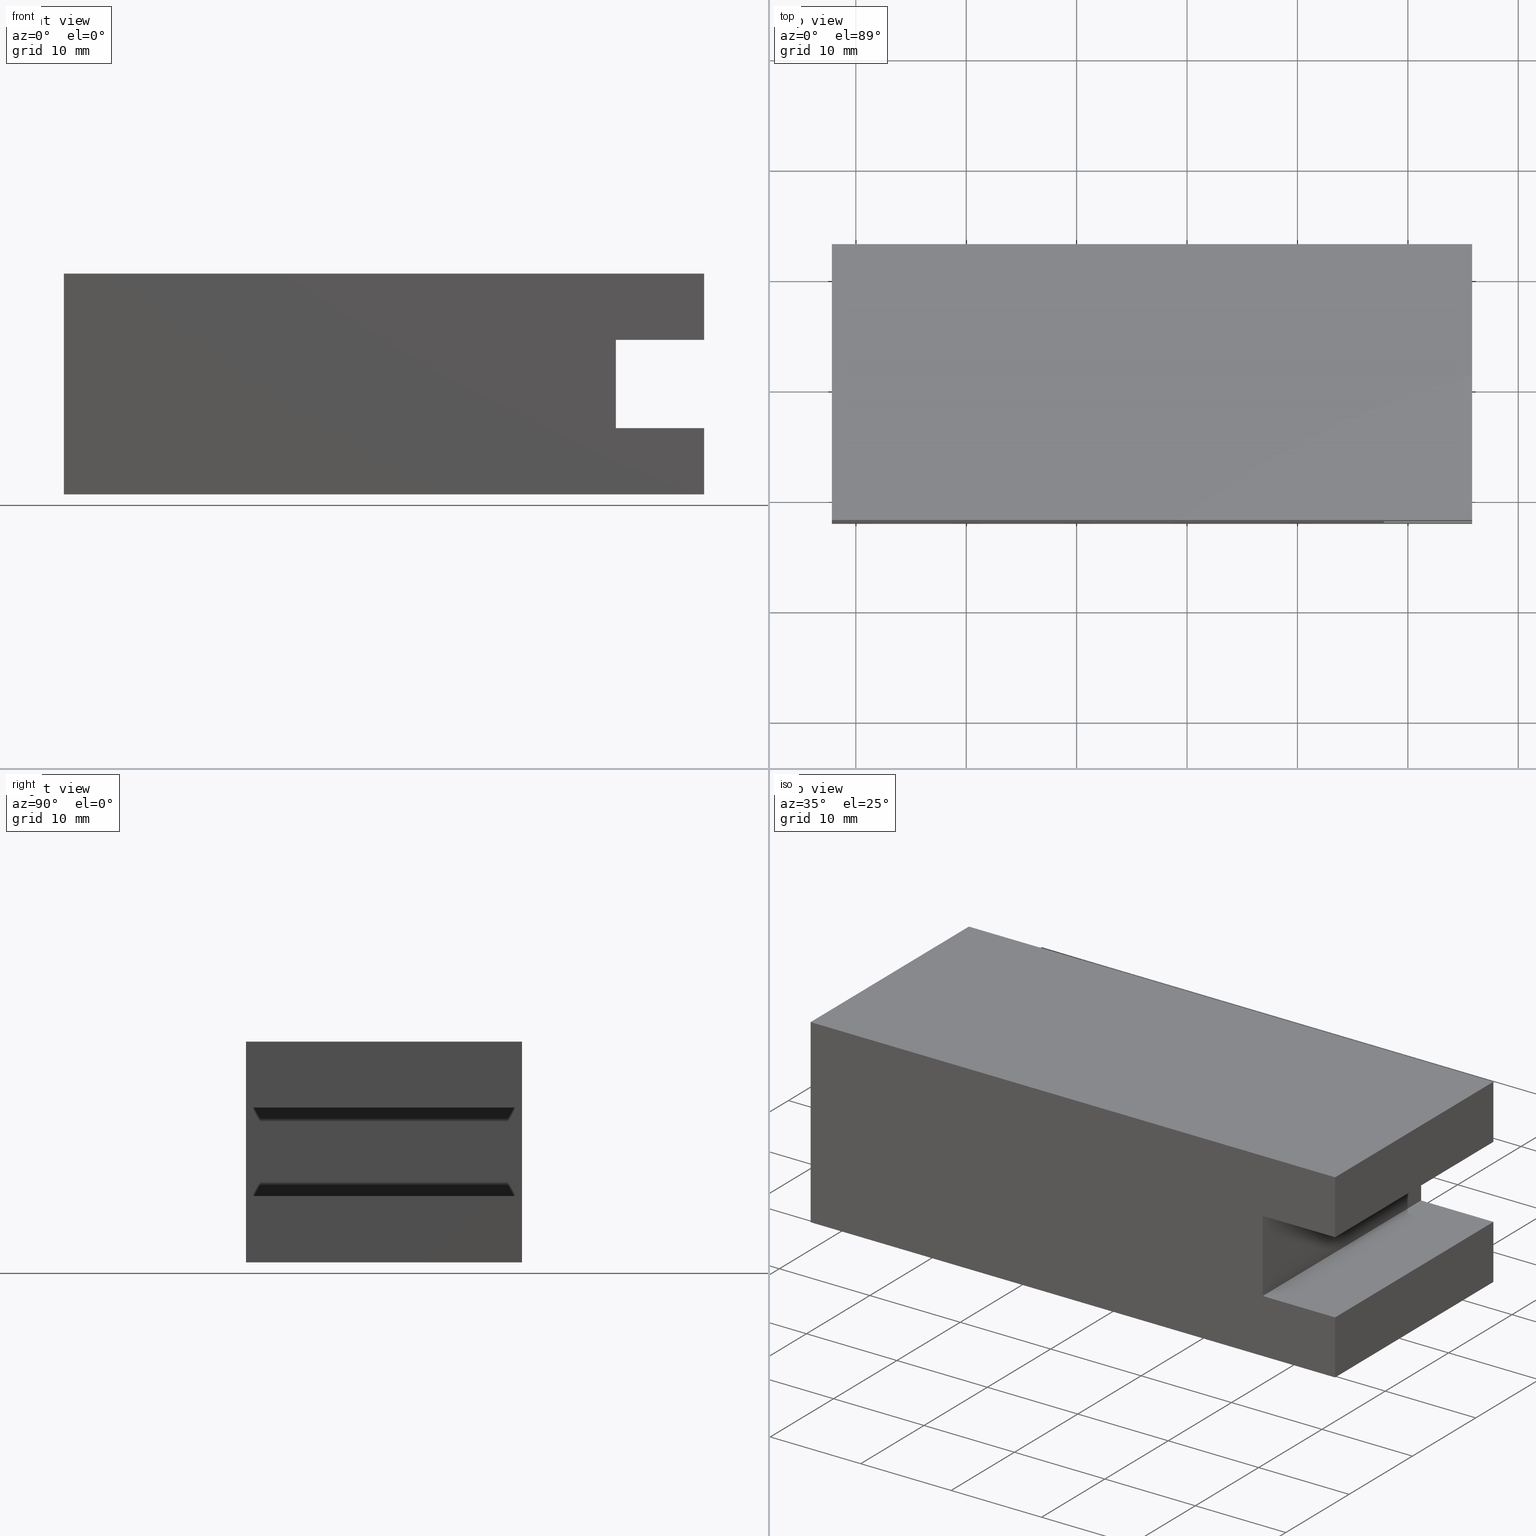
[diagram: canonical four-view strip — front | top / right | iso, engineering-drawing reading convention]
A machine part, canonical four-view strip (front | top / right | iso — engineering-drawing reading convention). The complete STEP part file that produces these views, byte-faithful:
ISO-10303-21;
HEADER;
/****************************************************************
 * Generated by software with PDE/Lib inside                    *
 * PDElib Version 4.0, created Mon Oct 07, 2002 at 18:44:48     *
 * International Technegroup Inc. (www.iti-oh.com)              *
 ****************************************************************/
FILE_DESCRIPTION((''),'2;1');
FILE_NAME('C:\\DATA\\V�KRESY 2004\\UP�NKY\\P��SLU�ENSTV� PRO T̎K� UP�NKY\\603P1.stp','2005-09-29T14:57:43',('CAD'),(''),'Autodesk Inventor 8','Autodesk Inventor 8','');
FILE_SCHEMA(('AUTOMOTIVE_DESIGN { 1 0 10303 214 1 1 1 1 }'));
ENDSEC;
DATA;
#5=APPLICATION_CONTEXT('automotive design');
#6=APPLICATION_PROTOCOL_DEFINITION('Draft International Standard','automotive_design',1998,#5);
#7=PRODUCT_CONTEXT('None',#5,'mechanical');
#8=PRODUCT('603-21E1','603-21E1','None',(#7));
#9=PRODUCT_RELATED_PRODUCT_CATEGORY('part','description',(#8));
#10=PRODUCT_DEFINITION_FORMATION('None','None',#8);
#11=PRODUCT_DEFINITION_CONTEXT('part definition',#5,'design');
#12=PRODUCT_DEFINITION('None','None',#10,#11);
#18=(NAMED_UNIT(*)PLANE_ANGLE_UNIT()SI_UNIT($,.RADIAN.));
#19=DIMENSIONAL_EXPONENTS(0.0,0.0,0.0,0.0,0.0,0.0,0.0);
#20=PLANE_ANGLE_MEASURE_WITH_UNIT(PLANE_ANGLE_MEASURE(0.017453292500000),#18);
#24=(CONVERSION_BASED_UNIT('DEGREE',#20)NAMED_UNIT(#19)PLANE_ANGLE_UNIT());
#28=(NAMED_UNIT(*)SI_UNIT($,.STERADIAN.)SOLID_ANGLE_UNIT());
#32=(LENGTH_UNIT()NAMED_UNIT(*)SI_UNIT(.MILLI.,.METRE.));
#34=UNCERTAINTY_MEASURE_WITH_UNIT(LENGTH_MEASURE(0.000001000000000),#32,'DISTANCE_ACCURACY_VALUE','');
#36=(GEOMETRIC_REPRESENTATION_CONTEXT(3)GLOBAL_UNCERTAINTY_ASSIGNED_CONTEXT((#34))GLOBAL_UNIT_ASSIGNED_CONTEXT((#24,#28,#32))REPRESENTATION_CONTEXT('None','None'));
#37=AXIS2_PLACEMENT_3D('',#38,#39,#40);
#38=CARTESIAN_POINT('',(0.0,0.0,0.0));
#39=DIRECTION('',(0.0,0.0,1.0));
#40=DIRECTION('',(1.0,0.0,0.0));
#41=SHAPE_REPRESENTATION('',(#37),#36);
#42=PRODUCT_DEFINITION_SHAPE('','',#12);
#43=SHAPE_DEFINITION_REPRESENTATION(#42,#41);
#44=CARTESIAN_POINT('',(37.825283991875160,13.038875658777529,5.999999999999998));
#45=DIRECTION('',(-1.0,0.0,0.0));
#46=DIRECTION('',(0.0,0.0,1.0));
#47=AXIS2_PLACEMENT_3D('',#44,#45,#46);
#48=PLANE('',#47);
#49=CARTESIAN_POINT('',(37.825283991875160,-11.961124341222462,5.999999999999998));
#50=VERTEX_POINT('',#49);
#51=CARTESIAN_POINT('',(37.825283991875160,-11.961124341222462,14.0));
#52=VERTEX_POINT('',#51);
#53=CARTESIAN_POINT('',(37.825283991875160,-11.961124341222462,5.999999999999998));
#54=DIRECTION('',(0.0,0.0,1.0));
#55=VECTOR('',#54,8.000000000000002);
#56=LINE('',#53,#55);
#57=EDGE_CURVE('',#50,#52,#56,.T.);
#58=ORIENTED_EDGE('',*,*,#57,.F.);
#59=CARTESIAN_POINT('',(37.825283991875160,13.038875658777529,5.999999999999998));
#60=VERTEX_POINT('',#59);
#61=CARTESIAN_POINT('',(37.825283991875160,13.038875658777529,5.999999999999998));
#62=DIRECTION('',(0.0,-1.0,0.0));
#63=VECTOR('',#62,24.999999999999993);
#64=LINE('',#61,#63);
#65=EDGE_CURVE('',#60,#50,#64,.T.);
#66=ORIENTED_EDGE('',*,*,#65,.F.);
#67=CARTESIAN_POINT('',(37.825283991875160,13.038875658777529,14.0));
#68=VERTEX_POINT('',#67);
#69=CARTESIAN_POINT('',(37.825283991875160,13.038875658777529,14.0));
#70=DIRECTION('',(0.0,0.0,-1.0));
#71=VECTOR('',#70,8.000000000000002);
#72=LINE('',#69,#71);
#73=EDGE_CURVE('',#68,#60,#72,.T.);
#74=ORIENTED_EDGE('',*,*,#73,.F.);
#75=CARTESIAN_POINT('',(37.825283991875160,13.038875658777529,14.0));
#76=DIRECTION('',(0.0,-1.0,0.0));
#77=VECTOR('',#76,24.999999999999993);
#78=LINE('',#75,#77);
#79=EDGE_CURVE('',#68,#52,#78,.T.);
#80=ORIENTED_EDGE('',*,*,#79,.T.);
#81=EDGE_LOOP('',(#58,#66,#74,#80));
#82=FACE_OUTER_BOUND('',#81,.T.);
#83=ADVANCED_FACE('',(#82),#48,.F.);
#84=CARTESIAN_POINT('',(37.825283991875160,13.038875658777529,14.0));
#85=DIRECTION('',(0.0,0.0,1.0));
#86=DIRECTION('',(1.0,0.0,0.0));
#87=AXIS2_PLACEMENT_3D('',#84,#85,#86);
#88=PLANE('',#87);
#89=CARTESIAN_POINT('',(45.825283991875168,-11.961124341222465,13.999999999999995));
#90=VERTEX_POINT('',#89);
#91=CARTESIAN_POINT('',(37.825283991875160,-11.961124341222462,14.0));
#92=DIRECTION('',(1.0,0.0,0.0));
#93=VECTOR('',#92,8.000000000000007);
#94=LINE('',#91,#93);
#95=EDGE_CURVE('',#52,#90,#94,.T.);
#96=ORIENTED_EDGE('',*,*,#95,.F.);
#97=ORIENTED_EDGE('',*,*,#79,.F.);
#98=CARTESIAN_POINT('',(45.825283991875160,13.038875658777529,13.999999999999995));
#99=VERTEX_POINT('',#98);
#100=CARTESIAN_POINT('',(45.825283991875160,13.038875658777529,13.999999999999995));
#101=DIRECTION('',(-1.0,0.0,0.0));
#102=VECTOR('',#101,8.0);
#103=LINE('',#100,#102);
#104=EDGE_CURVE('',#99,#68,#103,.T.);
#105=ORIENTED_EDGE('',*,*,#104,.F.);
#106=CARTESIAN_POINT('',(45.825283991875168,-11.961124341222465,13.999999999999995));
#107=DIRECTION('',(0.0,1.0,0.0));
#108=VECTOR('',#107,24.999999999999993);
#109=LINE('',#106,#108);
#110=EDGE_CURVE('',#90,#99,#109,.T.);
#111=ORIENTED_EDGE('',*,*,#110,.F.);
#112=EDGE_LOOP('',(#96,#97,#105,#111));
#113=FACE_OUTER_BOUND('',#112,.T.);
#114=ADVANCED_FACE('',(#113),#88,.F.);
#115=CARTESIAN_POINT('',(45.825283991875160,13.038875658777529,5.999999999999997));
#116=DIRECTION('',(0.0,0.0,-1.0));
#117=DIRECTION('',(-1.0,0.0,0.0));
#118=AXIS2_PLACEMENT_3D('',#115,#116,#117);
#119=PLANE('',#118);
#120=CARTESIAN_POINT('',(45.825283991875160,-11.961124341222462,5.999999999999997));
#121=VERTEX_POINT('',#120);
#122=CARTESIAN_POINT('',(45.825283991875160,-11.961124341222462,5.999999999999997));
#123=DIRECTION('',(-1.0,0.0,0.0));
#124=VECTOR('',#123,8.0);
#125=LINE('',#122,#124);
#126=EDGE_CURVE('',#121,#50,#125,.T.);
#127=ORIENTED_EDGE('',*,*,#126,.F.);
#128=CARTESIAN_POINT('',(45.825283991875160,13.038875658777529,5.999999999999997));
#129=VERTEX_POINT('',#128);
#130=CARTESIAN_POINT('',(45.825283991875160,13.038875658777529,5.999999999999997));
#131=DIRECTION('',(0.0,-1.0,0.0));
#132=VECTOR('',#131,24.999999999999993);
#133=LINE('',#130,#132);
#134=EDGE_CURVE('',#129,#121,#133,.T.);
#135=ORIENTED_EDGE('',*,*,#134,.F.);
#136=CARTESIAN_POINT('',(37.825283991875160,13.038875658777529,5.999999999999998));
#137=DIRECTION('',(1.0,0.0,0.0));
#138=VECTOR('',#137,8.0);
#139=LINE('',#136,#138);
#140=EDGE_CURVE('',#60,#129,#139,.T.);
#141=ORIENTED_EDGE('',*,*,#140,.F.);
#142=ORIENTED_EDGE('',*,*,#65,.T.);
#143=EDGE_LOOP('',(#127,#135,#141,#142));
#144=FACE_OUTER_BOUND('',#143,.T.);
#145=ADVANCED_FACE('',(#144),#119,.F.);
#146=CARTESIAN_POINT('',(45.825283991875168,-11.961124341222465,0.0));
#147=DIRECTION('',(0.0,-1.0,0.0));
#148=DIRECTION('',(0.0,0.0,-1.0));
#149=AXIS2_PLACEMENT_3D('',#146,#147,#148);
#150=PLANE('',#149);
#151=ORIENTED_EDGE('',*,*,#126,.T.);
#152=ORIENTED_EDGE('',*,*,#57,.T.);
#153=ORIENTED_EDGE('',*,*,#95,.T.);
#154=CARTESIAN_POINT('',(45.825283991875168,-11.961124341222465,20.0));
#155=VERTEX_POINT('',#154);
#156=CARTESIAN_POINT('',(45.825283991875168,-11.961124341222465,13.999999999999995));
#157=DIRECTION('',(0.0,0.0,1.0));
#158=VECTOR('',#157,6.000000000000005);
#159=LINE('',#156,#158);
#160=EDGE_CURVE('',#90,#155,#159,.T.);
#161=ORIENTED_EDGE('',*,*,#160,.T.);
#162=CARTESIAN_POINT('',(-12.174716008124847,-11.961124341222476,20.0));
#163=VERTEX_POINT('',#162);
#164=CARTESIAN_POINT('',(45.825283991875168,-11.961124341222465,20.0));
#165=DIRECTION('',(-1.0,0.0,0.0));
#166=VECTOR('',#165,58.000000000000014);
#167=LINE('',#164,#166);
#168=EDGE_CURVE('',#155,#163,#167,.T.);
#169=ORIENTED_EDGE('',*,*,#168,.T.);
#170=CARTESIAN_POINT('',(-12.174716008124847,-11.961124341222476,0.0));
#171=VERTEX_POINT('',#170);
#172=CARTESIAN_POINT('',(-12.174716008124847,-11.961124341222476,0.0));
#173=DIRECTION('',(0.0,0.0,1.0));
#174=VECTOR('',#173,20.0);
#175=LINE('',#172,#174);
#176=EDGE_CURVE('',#171,#163,#175,.T.);
#177=ORIENTED_EDGE('',*,*,#176,.F.);
#178=CARTESIAN_POINT('',(45.825283991875168,-11.961124341222465,0.0));
#179=VERTEX_POINT('',#178);
#180=CARTESIAN_POINT('',(-12.174716008124847,-11.961124341222476,0.0));
#181=DIRECTION('',(1.0,0.0,0.0));
#182=VECTOR('',#181,58.000000000000014);
#183=LINE('',#180,#182);
#184=EDGE_CURVE('',#171,#179,#183,.T.);
#185=ORIENTED_EDGE('',*,*,#184,.T.);
#186=CARTESIAN_POINT('',(45.825283991875168,-11.961124341222465,0.0));
#187=DIRECTION('',(0.0,0.0,1.0));
#188=VECTOR('',#187,5.999999999999997);
#189=LINE('',#186,#188);
#190=EDGE_CURVE('',#179,#121,#189,.T.);
#191=ORIENTED_EDGE('',*,*,#190,.T.);
#192=EDGE_LOOP('',(#151,#152,#153,#161,#169,#177,#185,#191));
#193=FACE_OUTER_BOUND('',#192,.T.);
#194=ADVANCED_FACE('',(#193),#150,.T.);
#195=CARTESIAN_POINT('',(45.825283991875160,13.038875658777531,0.0));
#196=DIRECTION('',(1.0,0.0,0.0));
#197=DIRECTION('',(0.0,0.0,-1.0));
#198=AXIS2_PLACEMENT_3D('',#195,#196,#197);
#199=PLANE('',#198);
#200=ORIENTED_EDGE('',*,*,#110,.T.);
#201=CARTESIAN_POINT('',(45.825283991875160,13.038875658777531,20.0));
#202=VERTEX_POINT('',#201);
#203=CARTESIAN_POINT('',(45.825283991875160,13.038875658777529,13.999999999999995));
#204=DIRECTION('',(0.0,0.0,1.0));
#205=VECTOR('',#204,6.000000000000005);
#206=LINE('',#203,#205);
#207=EDGE_CURVE('',#99,#202,#206,.T.);
#208=ORIENTED_EDGE('',*,*,#207,.T.);
#209=CARTESIAN_POINT('',(45.825283991875160,13.038875658777531,20.0));
#210=DIRECTION('',(0.0,-1.0,0.0));
#211=VECTOR('',#210,24.999999999999996);
#212=LINE('',#209,#211);
#213=EDGE_CURVE('',#202,#155,#212,.T.);
#214=ORIENTED_EDGE('',*,*,#213,.T.);
#215=ORIENTED_EDGE('',*,*,#160,.F.);
#216=EDGE_LOOP('',(#200,#208,#214,#215));
#217=FACE_OUTER_BOUND('',#216,.T.);
#218=ADVANCED_FACE('',(#217),#199,.T.);
#219=CARTESIAN_POINT('',(45.825283991875160,13.038875658777531,0.0));
#220=DIRECTION('',(1.0,0.0,0.0));
#221=DIRECTION('',(0.0,0.0,-1.0));
#222=AXIS2_PLACEMENT_3D('',#219,#220,#221);
#223=PLANE('',#222);
#224=ORIENTED_EDGE('',*,*,#134,.T.);
#225=ORIENTED_EDGE('',*,*,#190,.F.);
#226=CARTESIAN_POINT('',(45.825283991875160,13.038875658777531,0.0));
#227=VERTEX_POINT('',#226);
#228=CARTESIAN_POINT('',(45.825283991875168,-11.961124341222465,0.0));
#229=DIRECTION('',(0.0,1.0,0.0));
#230=VECTOR('',#229,24.999999999999996);
#231=LINE('',#228,#230);
#232=EDGE_CURVE('',#179,#227,#231,.T.);
#233=ORIENTED_EDGE('',*,*,#232,.T.);
#234=CARTESIAN_POINT('',(45.825283991875160,13.038875658777531,0.0));
#235=DIRECTION('',(0.0,0.0,1.0));
#236=VECTOR('',#235,5.999999999999997);
#237=LINE('',#234,#236);
#238=EDGE_CURVE('',#227,#129,#237,.T.);
#239=ORIENTED_EDGE('',*,*,#238,.T.);
#240=EDGE_LOOP('',(#224,#225,#233,#239));
#241=FACE_OUTER_BOUND('',#240,.T.);
#242=ADVANCED_FACE('',(#241),#223,.T.);
#243=CARTESIAN_POINT('',(-12.174716008124847,-11.961124341222476,0.0));
#244=DIRECTION('',(-1.0,0.0,0.0));
#245=DIRECTION('',(0.0,0.0,1.0));
#246=AXIS2_PLACEMENT_3D('',#243,#244,#245);
#247=PLANE('',#246);
#248=CARTESIAN_POINT('',(-12.174716008124848,13.038875658777524,20.0));
#249=VERTEX_POINT('',#248);
#250=CARTESIAN_POINT('',(-12.174716008124847,-11.961124341222476,20.0));
#251=DIRECTION('',(0.0,1.0,0.0));
#252=VECTOR('',#251,25.0);
#253=LINE('',#250,#252);
#254=EDGE_CURVE('',#163,#249,#253,.T.);
#255=ORIENTED_EDGE('',*,*,#254,.T.);
#256=CARTESIAN_POINT('',(-12.174716008124848,13.038875658777524,0.0));
#257=VERTEX_POINT('',#256);
#258=CARTESIAN_POINT('',(-12.174716008124848,13.038875658777524,0.0));
#259=DIRECTION('',(0.0,0.0,1.0));
#260=VECTOR('',#259,20.0);
#261=LINE('',#258,#260);
#262=EDGE_CURVE('',#257,#249,#261,.T.);
#263=ORIENTED_EDGE('',*,*,#262,.F.);
#264=CARTESIAN_POINT('',(-12.174716008124848,13.038875658777524,0.0));
#265=DIRECTION('',(0.0,-1.0,0.0));
#266=VECTOR('',#265,25.0);
#267=LINE('',#264,#266);
#268=EDGE_CURVE('',#257,#171,#267,.T.);
#269=ORIENTED_EDGE('',*,*,#268,.T.);
#270=ORIENTED_EDGE('',*,*,#176,.T.);
#271=EDGE_LOOP('',(#255,#263,#269,#270));
#272=FACE_OUTER_BOUND('',#271,.T.);
#273=ADVANCED_FACE('',(#272),#247,.T.);
#274=CARTESIAN_POINT('',(-12.174716008124848,13.038875658777524,0.0));
#275=DIRECTION('',(0.0,1.0,0.0));
#276=DIRECTION('',(0.0,0.0,1.0));
#277=AXIS2_PLACEMENT_3D('',#274,#275,#276);
#278=PLANE('',#277);
#279=ORIENTED_EDGE('',*,*,#140,.T.);
#280=ORIENTED_EDGE('',*,*,#238,.F.);
#281=CARTESIAN_POINT('',(45.825283991875160,13.038875658777531,0.0));
#282=DIRECTION('',(-1.0,0.0,0.0));
#283=VECTOR('',#282,58.000000000000007);
#284=LINE('',#281,#283);
#285=EDGE_CURVE('',#227,#257,#284,.T.);
#286=ORIENTED_EDGE('',*,*,#285,.T.);
#287=ORIENTED_EDGE('',*,*,#262,.T.);
#288=CARTESIAN_POINT('',(-12.174716008124848,13.038875658777524,20.0));
#289=DIRECTION('',(1.0,0.0,0.0));
#290=VECTOR('',#289,58.000000000000007);
#291=LINE('',#288,#290);
#292=EDGE_CURVE('',#249,#202,#291,.T.);
#293=ORIENTED_EDGE('',*,*,#292,.T.);
#294=ORIENTED_EDGE('',*,*,#207,.F.);
#295=ORIENTED_EDGE('',*,*,#104,.T.);
#296=ORIENTED_EDGE('',*,*,#73,.T.);
#297=EDGE_LOOP('',(#279,#280,#286,#287,#293,#294,#295,#296));
#298=FACE_OUTER_BOUND('',#297,.T.);
#299=ADVANCED_FACE('',(#298),#278,.T.);
#300=CARTESIAN_POINT('',(16.825283991875160,0.538875658777529,0.0));
#301=DIRECTION('',(0.0,0.0,1.0));
#302=DIRECTION('',(1.0,0.0,0.0));
#303=AXIS2_PLACEMENT_3D('',#300,#301,#302);
#304=PLANE('',#303);
#305=ORIENTED_EDGE('',*,*,#285,.F.);
#306=ORIENTED_EDGE('',*,*,#232,.F.);
#307=ORIENTED_EDGE('',*,*,#184,.F.);
#308=ORIENTED_EDGE('',*,*,#268,.F.);
#309=EDGE_LOOP('',(#305,#306,#307,#308));
#310=FACE_OUTER_BOUND('',#309,.T.);
#311=ADVANCED_FACE('',(#310),#304,.F.);
#312=CARTESIAN_POINT('',(16.825283991875160,0.538875658777529,20.0));
#313=DIRECTION('',(0.0,0.0,1.0));
#314=DIRECTION('',(1.0,0.0,0.0));
#315=AXIS2_PLACEMENT_3D('',#312,#313,#314);
#316=PLANE('',#315);
#317=ORIENTED_EDGE('',*,*,#213,.F.);
#318=ORIENTED_EDGE('',*,*,#292,.F.);
#319=ORIENTED_EDGE('',*,*,#254,.F.);
#320=ORIENTED_EDGE('',*,*,#168,.F.);
#321=EDGE_LOOP('',(#317,#318,#319,#320));
#322=FACE_OUTER_BOUND('',#321,.T.);
#323=ADVANCED_FACE('',(#322),#316,.T.);
#324=CLOSED_SHELL('',(#83,#114,#145,#194,#218,#242,#273,#299,#311,#323));
#325=MANIFOLD_SOLID_BREP('',#324);
#326=COLOUR_RGB('Metal-Steel',0.639216005802155,0.639216005802155,0.686275005340576);
#327=FILL_AREA_STYLE_COLOUR('Metal-Steel',#326);
#328=FILL_AREA_STYLE('Metal-Steel',(#327));
#329=SURFACE_STYLE_FILL_AREA(#328);
#330=SURFACE_SIDE_STYLE('Metal-Steel',(#329));
#331=SURFACE_STYLE_USAGE(.BOTH.,#330);
#332=PRESENTATION_STYLE_ASSIGNMENT((#331));
#333=STYLED_ITEM('',(#332),#325);
#334=MECHANICAL_DESIGN_GEOMETRIC_PRESENTATION_REPRESENTATION('',(#333),#36);
#335=ADVANCED_BREP_SHAPE_REPRESENTATION('ABSR',(#325),#36);
#336=SHAPE_REPRESENTATION_RELATIONSHIP('SRR','None',#335,#41);
ENDSEC;
END-ISO-10303-21;
